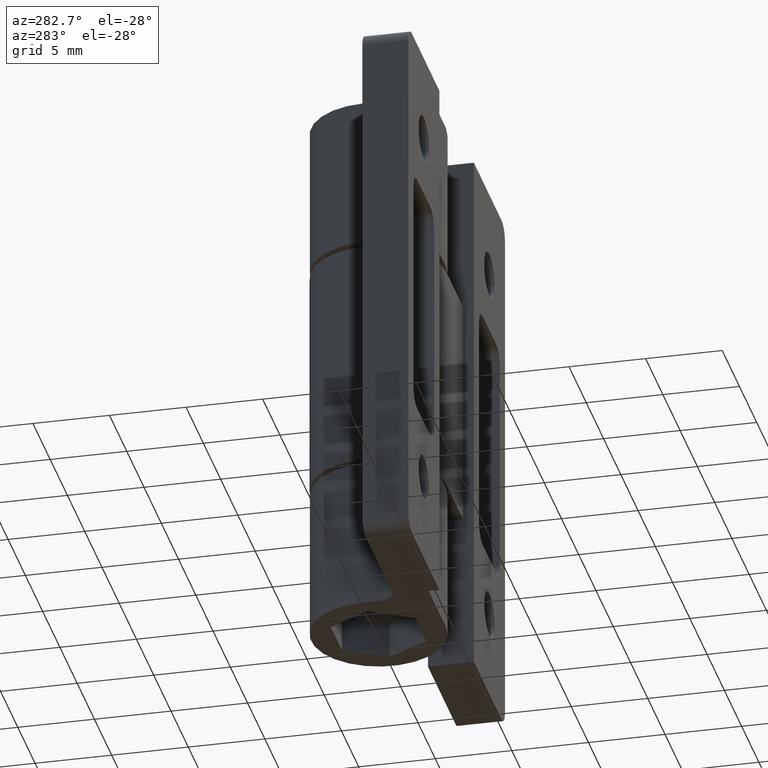
[diagram: clean part render]
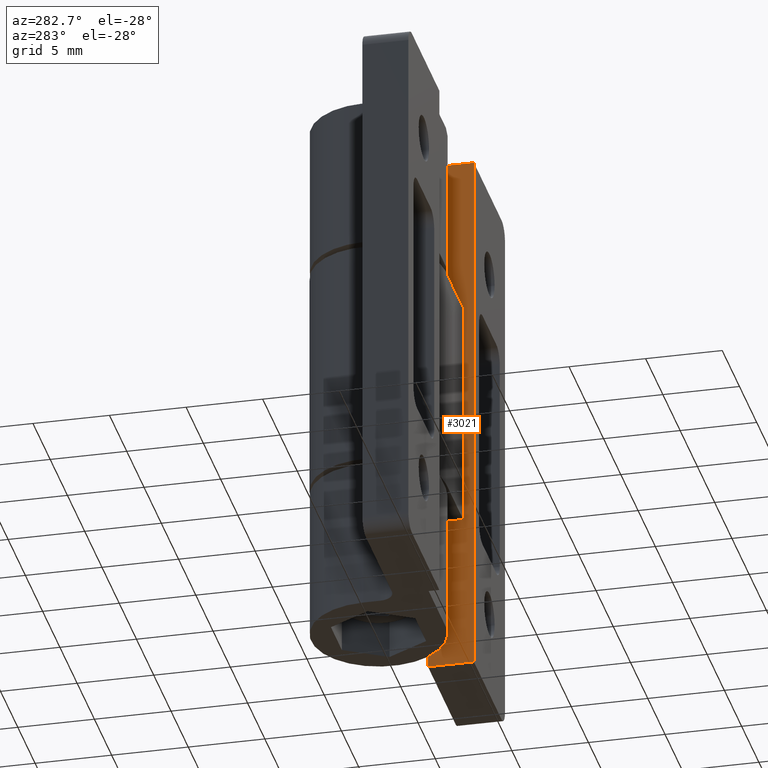
[diagram: same view with one face highlighted and labeled with its STEP entity id]
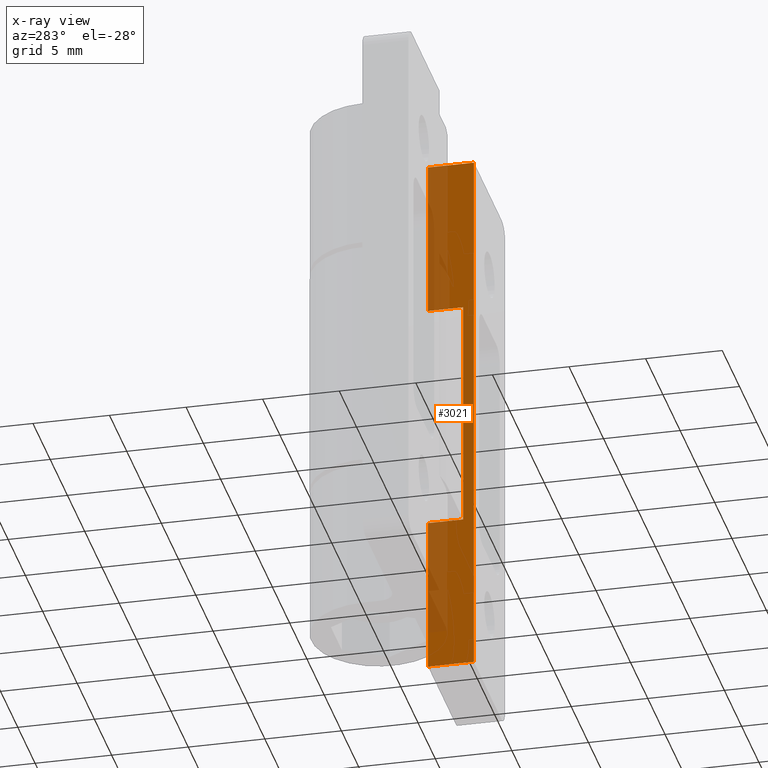
[diagram: x-ray of the same camera — body ghosted, the highlighted face saturated]
A machine part, auxiliary view. The second image highlights one B-rep face of the part: STEP entity #3021.
The next image is the same camera in x-ray: the body ghosted, the highlighted face saturated — about 32% of this face is hidden behind the body in this view.
In plain terms, the highlighted planar face has unit normal (-1, -0, 0).
Its self-contained STEP definition (entity closure, byte-faithful):
#408=PLANE('',#3205);
#517=FACE_OUTER_BOUND('',#667,.T.);
#667=EDGE_LOOP('',(#2864,#2865,#2866,#2867,#2868,#2869,#2870,#2871));
#785=LINE('',#33442,#941);
#789=LINE('',#33452,#945);
#793=LINE('',#33459,#949);
#797=LINE('',#33473,#953);
#800=LINE('',#33483,#956);
#801=LINE('',#33490,#957);
#823=LINE('',#33573,#979);
#824=LINE('',#33575,#980);
#941=VECTOR('',#3584,3.);
#945=VECTOR('',#3592,10.35);
#949=VECTOR('',#3596,10.35);
#953=VECTOR('',#3610,3.);
#956=VECTOR('',#3619,2.3);
#957=VECTOR('',#3626,2.3);
#979=VECTOR('',#3720,36.);
#980=VECTOR('',#3723,15.3);
#1406=VERTEX_POINT('',#33439);
#1407=VERTEX_POINT('',#33441);
#1410=VERTEX_POINT('',#33449);
#1411=VERTEX_POINT('',#33451);
#1414=VERTEX_POINT('',#33457);
#1419=VERTEX_POINT('',#33471);
#1423=VERTEX_POINT('',#33481);
#1426=VERTEX_POINT('',#33489);
#1863=EDGE_CURVE('',#1406,#1407,#785,.T.);
#1868=EDGE_CURVE('',#1411,#1410,#789,.T.);
#1872=EDGE_CURVE('',#1406,#1414,#793,.T.);
#1879=EDGE_CURVE('',#1419,#1410,#797,.T.);
#1884=EDGE_CURVE('',#1423,#1414,#800,.T.);
#1887=EDGE_CURVE('',#1426,#1411,#801,.T.);
#1925=EDGE_CURVE('',#1419,#1407,#823,.T.);
#1926=EDGE_CURVE('',#1426,#1423,#824,.T.);
#2864=ORIENTED_EDGE('',*,*,#1868,.T.);
#2865=ORIENTED_EDGE('',*,*,#1879,.F.);
#2866=ORIENTED_EDGE('',*,*,#1925,.T.);
#2867=ORIENTED_EDGE('',*,*,#1863,.F.);
#2868=ORIENTED_EDGE('',*,*,#1872,.T.);
#2869=ORIENTED_EDGE('',*,*,#1884,.F.);
#2870=ORIENTED_EDGE('',*,*,#1926,.F.);
#2871=ORIENTED_EDGE('',*,*,#1887,.T.);
#3021=ADVANCED_FACE('',(#517),#408,.T.);
#3205=AXIS2_PLACEMENT_3D('',#33574,#3721,#3722);
#3584=DIRECTION('',(0.,0.,-1.));
#3592=DIRECTION('',(0.,-1.,0.));
#3596=DIRECTION('',(0.,-1.,0.));
#3610=DIRECTION('',(0.,0.,1.));
#3619=DIRECTION('',(0.,0.,1.));
#3626=DIRECTION('',(0.,0.,1.));
#3720=DIRECTION('',(0.,1.,0.));
#3721=DIRECTION('center_axis',(1.,0.,0.));
#3722=DIRECTION('ref_axis',(0.,0.,-1.));
#3723=DIRECTION('',(0.,1.,0.));
#33439=CARTESIAN_POINT('',(39.9262510638286,18.,3.));
#33441=CARTESIAN_POINT('',(39.9262510638286,18.,0.));
#33442=CARTESIAN_POINT('',(39.9262510638287,18.,2.375));
#33449=CARTESIAN_POINT('',(39.9262510638286,-18.,3.));
#33451=CARTESIAN_POINT('',(39.9262510638286,-7.65,3.));
#33452=CARTESIAN_POINT('',(39.9262510638286,-3.825,3.));
#33457=CARTESIAN_POINT('',(39.9262510638286,7.65,3.));
#33459=CARTESIAN_POINT('',(39.9262510638286,9.,3.));
#33471=CARTESIAN_POINT('',(39.9262510638286,-18.,0.));
#33473=CARTESIAN_POINT('',(39.9262510638286,-18.,-1.54074395550979E-32));
#33481=CARTESIAN_POINT('',(39.9262510638286,7.65,0.7));
#33483=CARTESIAN_POINT('',(39.9262510638286,7.65,0.));
#33489=CARTESIAN_POINT('',(39.9262510638286,-7.65,0.7));
#33490=CARTESIAN_POINT('',(39.9262510638286,-7.65,0.));
#33573=CARTESIAN_POINT('',(39.9262510638286,0.,-1.54074395550979E-32));
#33574=CARTESIAN_POINT('Origin',(39.9262510638286,0.,0.7));
#33575=CARTESIAN_POINT('',(39.9262510638286,0.,0.7));